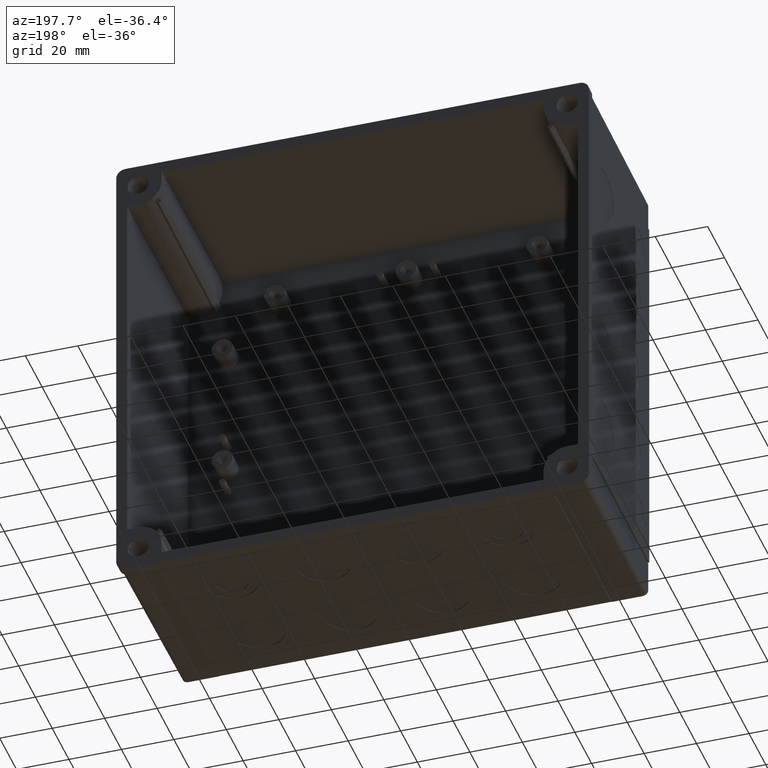
[diagram: clean part render]
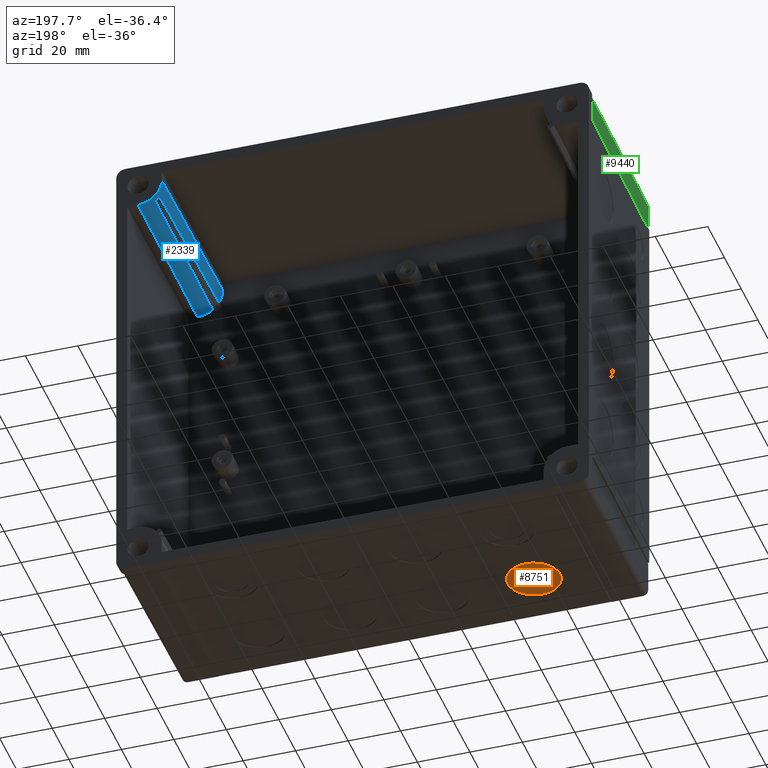
[diagram: same view with three faces highlighted in distinct colors, each labeled with its STEP entity id]
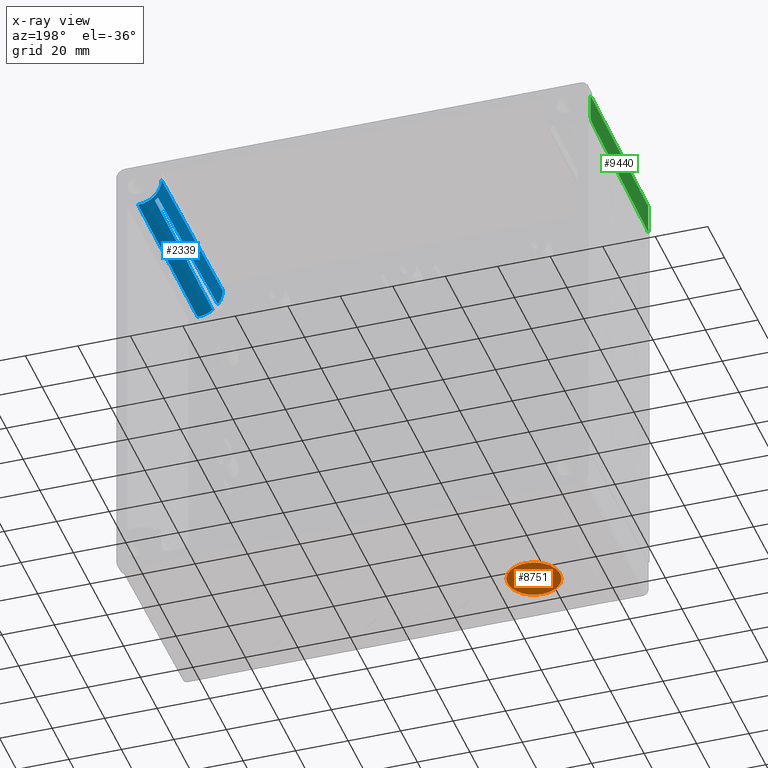
[diagram: x-ray of the same camera — body ghosted, the three highlighted faces saturated]
A machine part, auxiliary view with three faces highlighted in distinct colors.
The next image is the same camera in x-ray (body ghosted, the three faces saturated) — at least one of them is partly hidden behind the body in this view.
Their STEP definitions:

[orange] entity #8751 — the highlighted planar face has unit normal (0, 0.0087, 1).
#717 = CARTESIAN_POINT ( 'NONE',  ( -52.50000000000000000, -51.99627469223723600, -89.39622776947172200 ) ) ;
#1160 = DIRECTION ( 'NONE',  ( 0.0000000000000000000, 0.008726535498373953800, 0.9999619230641713100 ) ) ;
#1282 = CARTESIAN_POINT ( 'NONE',  ( -52.50000000000000000, -41.99665546159551600, -89.48349312445546400 ) ) ;
#2019 = CIRCLE ( 'NONE', #10596, 10.00000000000000200 ) ;
#2670 = CARTESIAN_POINT ( 'NONE',  ( -52.50000000000000000, -51.99627469223723600, -89.39622776947172200 ) ) ;
#3324 = CIRCLE ( 'NONE', #9554, 10.00000000000000200 ) ;
#3585 = EDGE_LOOP ( 'NONE', ( #8639, #9961 ) ) ;
#3618 = DIRECTION ( 'NONE',  ( -0.0000000000000000000, -0.008726535498373953800, -0.9999619230641713100 ) ) ;
#3956 = DIRECTION ( 'NONE',  ( 0.0000000000000000000, -0.9999619230641713100, 0.008726535498373953800 ) ) ;
#4173 = EDGE_CURVE ( 'NONE', #10068, #5084, #2019, .T. ) ;
#5084 = VERTEX_POINT ( 'NONE', #1282 ) ;
#5979 = AXIS2_PLACEMENT_3D ( 'NONE', #9784, #1160, #3956 ) ;
#6507 = DIRECTION ( 'NONE',  ( 0.0000000000000000000, -0.9999619230641713100, 0.008726535498373986700 ) ) ;
#6654 = FACE_OUTER_BOUND ( 'NONE', #3585, .T. ) ;
#6973 = PLANE ( 'NONE',  #5979 ) ;
#7149 = CARTESIAN_POINT ( 'NONE',  ( -52.50000000000000000, -61.99589392287894900, -89.30896241448797900 ) ) ;
#8337 = DIRECTION ( 'NONE',  ( 0.0000000000000000000, -0.9999619230641713100, 0.008726535498373986700 ) ) ;
#8353 = EDGE_CURVE ( 'NONE', #5084, #10068, #3324, .T. ) ;
#8421 = DIRECTION ( 'NONE',  ( -0.0000000000000000000, -0.008726535498373953800, -0.9999619230641713100 ) ) ;
#8639 = ORIENTED_EDGE ( 'NONE', *, *, #8353, .T. ) ;
#8751 = ADVANCED_FACE ( 'NONE', ( #6654 ), #6973, .F. ) ;
#9554 = AXIS2_PLACEMENT_3D ( 'NONE', #2670, #3618, #8337 ) ;
#9784 = CARTESIAN_POINT ( 'NONE',  ( -52.50000000000000000, -51.99627469223723600, -89.39622776947172200 ) ) ;
#9961 = ORIENTED_EDGE ( 'NONE', *, *, #4173, .T. ) ;
#10068 = VERTEX_POINT ( 'NONE', #7149 ) ;
#10596 = AXIS2_PLACEMENT_3D ( 'NONE', #717, #8421, #6507 ) ;

[blue] entity #2339 — the highlighted conical surface has half-angle 0.5 deg.
#6 = VERTEX_POINT ( 'NONE', #7745 ) ;
#31 = ORIENTED_EDGE ( 'NONE', *, *, #5274, .F. ) ;
#114 = VERTEX_POINT ( 'NONE', #2211 ) ;
#416 = CONICAL_SURFACE ( 'NONE', #5337, 9.000000000000007100, 0.008726646259971666800 ) ;
#556 = EDGE_CURVE ( 'NONE', #6254, #1825, #10102, .T. ) ;
#1182 = CARTESIAN_POINT ( 'NONE',  ( 81.75000000000000000, 0.0000000000000000000, 81.75000000000001400 ) ) ;
#1407 = AXIS2_PLACEMENT_3D ( 'NONE', #3170, #7956, #4091 ) ;
#1532 = ORIENTED_EDGE ( 'NONE', *, *, #7150, .F. ) ;
#1689 = CARTESIAN_POINT ( 'NONE',  ( 74.02908415226613700, -71.00000000000000000, 76.01202918244892700 ) ) ;
#1690 = ORIENTED_EDGE ( 'NONE', *, *, #9914, .F. ) ;
#1825 = VERTEX_POINT ( 'NONE', #3905 ) ;
#1988 = CARTESIAN_POINT ( 'NONE',  ( 75.98514694180882100, -36.91827245124490300, 74.42282682756825800 ) ) ;
#2028 = DIRECTION ( 'NONE',  ( 0.008726535498373953800, 0.9999619230641713100, 2.953780681555979500E-017 ) ) ;
#2068 = CARTESIAN_POINT ( 'NONE',  ( 75.96765493337527200, -7.959144256122450600, 74.76273838224351200 ) ) ;
#2127 = LINE ( 'NONE', #12464, #9524 ) ;
#2177 = CIRCLE ( 'NONE', #7519, 9.017453735581535000 ) ;
#2211 = CARTESIAN_POINT ( 'NONE',  ( 74.83315437106621500, -2.000000000000000000, 75.96452522096477400 ) ) ;
#2263 = ORIENTED_EDGE ( 'NONE', *, *, #8609, .F. ) ;
#2339 = ADVANCED_FACE ( 'NONE', ( #4448 ), #416, .T. ) ;
#2656 = CARTESIAN_POINT ( 'NONE',  ( 74.44191484099789600, -35.28577673808040800, 75.98408725670594800 ) ) ;
#2750 = CARTESIAN_POINT ( 'NONE',  ( 74.02908415226613700, -71.00000000000000000, 76.01202918244892700 ) ) ;
#3170 = CARTESIAN_POINT ( 'NONE',  ( 81.75000000000000000, -71.00000000000000000, 81.75000000000001400 ) ) ;
#3603 = VERTEX_POINT ( 'NONE', #5547 ) ;
#3604 = CARTESIAN_POINT ( 'NONE',  ( 74.83315437106621500, -2.000000000000000000, 75.96452522096477400 ) ) ;
#3680 = CARTESIAN_POINT ( 'NONE',  ( 72.13039238685611600, -71.00000000000000000, 81.75000000000000000 ) ) ;
#3773 = CARTESIAN_POINT ( 'NONE',  ( 74.10218513339022200, -64.64289605725134900, 76.00667298126825200 ) ) ;
#3905 = CARTESIAN_POINT ( 'NONE',  ( 81.75000000000001400, 0.0000000000000000000, 72.75000000000001400 ) ) ;
#3988 = CARTESIAN_POINT ( 'NONE',  ( 75.97105188646592900, -13.91829154019010100, 74.69258959673094000 ) ) ;
#3999 = CARTESIAN_POINT ( 'NONE',  ( 81.75000000000000000, -2.000000000000000000, 81.75000000000001400 ) ) ;
#4091 = DIRECTION ( 'NONE',  ( 0.0000000000000000000, 0.0000000000000000000, -1.000000000000000000 ) ) ;
#4222 = AXIS2_PLACEMENT_3D ( 'NONE', #5241, #8234, #11949 ) ;
#4448 = FACE_OUTER_BOUND ( 'NONE', #8723, .T. ) ;
#4714 = CARTESIAN_POINT ( 'NONE',  ( 74.17554175027154900, -58.28579482740408900, 76.00157244932653100 ) ) ;
#4784 = VERTEX_POINT ( 'NONE', #2750 ) ;
#4814 = ORIENTED_EDGE ( 'NONE', *, *, #6701, .T. ) ;
#4853 = CARTESIAN_POINT ( 'NONE',  ( 81.75000000000001400, 6.055019831808904700E-017, 72.75000000000001400 ) ) ;
#5007 = VERTEX_POINT ( 'NONE', #11954 ) ;
#5241 = CARTESIAN_POINT ( 'NONE',  ( 81.75000000000000000, -71.00000000000000000, 81.75000000000001400 ) ) ;
#5274 = EDGE_CURVE ( 'NONE', #4784, #114, #6826, .T. ) ;
#5337 = AXIS2_PLACEMENT_3D ( 'NONE', #1182, #7073, #6003 ) ;
#5547 = CARTESIAN_POINT ( 'NONE',  ( 75.96452522096468800, -1.999999999999997300, 74.83315437106630000 ) ) ;
#5694 = DIRECTION ( 'NONE',  ( -1.345611199375488900E-017, 0.9999619230641713100, 0.008726535498373953800 ) ) ;
#5754 = EDGE_CURVE ( 'NONE', #7878, #5007, #2127, .T. ) ;
#6003 = DIRECTION ( 'NONE',  ( 0.0000000000000000000, 0.0000000000000000000, -1.000000000000000000 ) ) ;
#6193 = ORIENTED_EDGE ( 'NONE', *, *, #556, .F. ) ;
#6254 = VERTEX_POINT ( 'NONE', #7218 ) ;
#6452 = CIRCLE ( 'NONE', #1407, 9.619607613143898600 ) ;
#6647 = CARTESIAN_POINT ( 'NONE',  ( 74.63649448887862500, -18.64287652477926800, 75.97326597550414800 ) ) ;
#6701 = EDGE_CURVE ( 'NONE', #5007, #1825, #9732, .T. ) ;
#6826 = B_SPLINE_CURVE_WITH_KNOTS ( 'NONE', 3,
 ( #1689, #3773, #4714, #8530, #2656, #6647, #3604 ),
 .UNSPECIFIED., .F., .F.,
 ( 4, 3, 4 ),
 ( 2.000132931470033500E-007, 0.01907277946210354400, 0.06900490211012022500 ),
 .UNSPECIFIED. ) ;
#6836 = CARTESIAN_POINT ( 'NONE',  ( 75.97470382647696900, -19.87744164630781500, 74.62269576330999100 ) ) ;
#6877 = CARTESIAN_POINT ( 'NONE',  ( 76.01202918244882800, -71.00000000000000000, 74.02908415226620800 ) ) ;
#7068 = DIRECTION ( 'NONE',  ( 0.0000000000000000000, 0.0000000000000000000, -1.000000000000000000 ) ) ;
#7073 = DIRECTION ( 'NONE',  ( 0.0000000000000000000, -1.000000000000000000, 0.0000000000000000000 ) ) ;
#7150 = EDGE_CURVE ( 'NONE', #114, #3603, #2177, .T. ) ;
#7218 = CARTESIAN_POINT ( 'NONE',  ( 81.75000000000001400, -71.00000000000000000, 72.13039238685613000 ) ) ;
#7519 = AXIS2_PLACEMENT_3D ( 'NONE', #3999, #8792, #7824 ) ;
#7745 = CARTESIAN_POINT ( 'NONE',  ( 76.01202918244882800, -71.00000000000000000, 74.02908415226620800 ) ) ;
#7773 = CARTESIAN_POINT ( 'NONE',  ( 75.96452522096468800, -1.999999999999997300, 74.83315437106630000 ) ) ;
#7824 = DIRECTION ( 'NONE',  ( 6.155967400444657400E-015, 0.0000000000000000000, 1.000000000000000000 ) ) ;
#7878 = VERTEX_POINT ( 'NONE', #3680 ) ;
#7956 = DIRECTION ( 'NONE',  ( -0.0000000000000000000, -1.000000000000000000, 0.0000000000000000000 ) ) ;
#8180 = CARTESIAN_POINT ( 'NONE',  ( 81.75000000000000000, 0.0000000000000000000, 81.75000000000001400 ) ) ;
#8234 = DIRECTION ( 'NONE',  ( -0.0000000000000000000, -1.000000000000000000, 0.0000000000000000000 ) ) ;
#8530 = CARTESIAN_POINT ( 'NONE',  ( 74.24916603707846700, -51.92869650431466500, 75.99673962318459500 ) ) ;
#8609 = EDGE_CURVE ( 'NONE', #3603, #6, #9617, .T. ) ;
#8723 = EDGE_LOOP ( 'NONE', ( #1532, #31, #1690, #10974, #4814, #6193, #11842, #2263 ) ) ;
#8792 = DIRECTION ( 'NONE',  ( -0.0000000000000000000, -1.000000000000000000, -0.0000000000000000000 ) ) ;
#9202 = VECTOR ( 'NONE', #5694, 1000.000000000000000 ) ;
#9524 = VECTOR ( 'NONE', #2028, 1000.000000000000000 ) ;
#9617 = B_SPLINE_CURVE_WITH_KNOTS ( 'NONE', 3,
 ( #7773, #2068, #3988, #6836, #1988, #10784, #6877 ),
 .UNSPECIFIED., .F., .F.,
 ( 4, 3, 4 ),
 ( 2.000139895744804500E-007, 0.01787888330574040000, 0.06900490214717065800 ),
 .UNSPECIFIED. ) ;
#9732 = CIRCLE ( 'NONE', #12330, 9.000000000000007100 ) ;
#9914 = EDGE_CURVE ( 'NONE', #7878, #4784, #6452, .T. ) ;
#10042 = CIRCLE ( 'NONE', #4222, 9.619607613143898600 ) ;
#10102 = LINE ( 'NONE', #4853, #9202 ) ;
#10784 = CARTESIAN_POINT ( 'NONE',  ( 75.99767133221845900, -53.95912658430225400, 74.22503887899671300 ) ) ;
#10969 = DIRECTION ( 'NONE',  ( 0.0000000000000000000, -1.000000000000000000, -0.0000000000000000000 ) ) ;
#10974 = ORIENTED_EDGE ( 'NONE', *, *, #5754, .T. ) ;
#11349 = EDGE_CURVE ( 'NONE', #6, #6254, #10042, .T. ) ;
#11842 = ORIENTED_EDGE ( 'NONE', *, *, #11349, .F. ) ;
#11949 = DIRECTION ( 'NONE',  ( 0.0000000000000000000, 0.0000000000000000000, -1.000000000000000000 ) ) ;
#11954 = CARTESIAN_POINT ( 'NONE',  ( 72.75000000000000000, 0.0000000000000000000, 81.75000000000001400 ) ) ;
#12330 = AXIS2_PLACEMENT_3D ( 'NONE', #8180, #10969, #7068 ) ;
#12464 = CARTESIAN_POINT ( 'NONE',  ( 72.75000000000000000, 0.0000000000000000000, 81.75000000000001400 ) ) ;

[green] entity #9440 — the highlighted planar face has unit normal (1, 0.0087, 0).
#712 = VECTOR ( 'NONE', #8352, 1000.000000000000000 ) ;
#1094 = VERTEX_POINT ( 'NONE', #2736 ) ;
#1122 = CARTESIAN_POINT ( 'NONE',  ( -89.34999999999998000, -4.000000000000000000, 86.54999999999998300 ) ) ;
#1243 = VECTOR ( 'NONE', #7864, 1000.000000000000000 ) ;
#1511 = ORIENTED_EDGE ( 'NONE', *, *, #5667, .F. ) ;
#1665 = VERTEX_POINT ( 'NONE', #11387 ) ;
#1672 = EDGE_CURVE ( 'NONE', #6999, #1665, #2672, .T. ) ;
#1818 = DIRECTION ( 'NONE',  ( -0.008726203243944194800, 0.9999238504775704900, -0.008726203243944236400 ) ) ;
#1894 = ORIENTED_EDGE ( 'NONE', *, *, #11041, .T. ) ;
#1955 =( BOUNDED_CURVE ( )  B_SPLINE_CURVE ( 3, ( #7450, #3670, #9505, #12342 ),
 .UNSPECIFIED., .F., .F. ) 
 B_SPLINE_CURVE_WITH_KNOTS ( ( 4, 4 ),
 ( 2.891119749198240600E-013, 1.562069680535214300 ),
 .UNSPECIFIED. ) 
 CURVE ( )  GEOMETRIC_REPRESENTATION_ITEM ( )  RATIONAL_B_SPLINE_CURVE ( ( 1.000000000000000000, 0.8067902504155235500, 0.8067902504155235500, 1.000000000000000000 ) ) 
 REPRESENTATION_ITEM ( '' )  );
#2357 = PLANE ( 'NONE',  #10451 ) ;
#2532 = VECTOR ( 'NONE', #1818, 1000.000000000000100 ) ;
#2663 = VERTEX_POINT ( 'NONE', #10483 ) ;
#2672 = LINE ( 'NONE', #6665, #2532 ) ;
#2736 = CARTESIAN_POINT ( 'NONE',  ( -88.73911925464683700, -74.00000000000000000, 74.93911925464689700 ) ) ;
#2802 = LINE ( 'NONE', #5128, #10931 ) ;
#3670 = CARTESIAN_POINT ( 'NONE',  ( -89.34999999999992300, -4.000000000000000000, 76.36913996860559500 ) ) ;
#3778 = LINE ( 'NONE', #1122, #1243 ) ;
#3913 = VERTEX_POINT ( 'NONE', #11850 ) ;
#4270 = CARTESIAN_POINT ( 'NONE',  ( -88.73039238685613800, -75.00000000000000000, 86.55000000000002600 ) ) ;
#4370 = CARTESIAN_POINT ( 'NONE',  ( -89.33269857506154200, -5.982546929003253100, 75.53269857506163000 ) ) ;
#4441 = DIRECTION ( 'NONE',  ( 4.700000992991000500E-015, -0.0000000000000000000, -1.000000000000000000 ) ) ;
#4550 = EDGE_LOOP ( 'NONE', ( #11329, #1894, #6934, #4974, #11290, #1511, #7120 ) ) ;
#4564 = CARTESIAN_POINT ( 'NONE',  ( -88.73911925464683700, -74.00000000000000000, 74.73911925464686600 ) ) ;
#4974 = ORIENTED_EDGE ( 'NONE', *, *, #6894, .T. ) ;
#5128 = CARTESIAN_POINT ( 'NONE',  ( -89.35083761285353900, -3.904019073774919900, 75.55083761285362700 ) ) ;
#5667 = EDGE_CURVE ( 'NONE', #2663, #6999, #9079, .T. ) ;
#6028 = EDGE_CURVE ( 'NONE', #1094, #6250, #2802, .T. ) ;
#6250 = VERTEX_POINT ( 'NONE', #4370 ) ;
#6258 = CARTESIAN_POINT ( 'NONE',  ( -89.34999999999992300, -4.000000000000000000, 86.54999999999998300 ) ) ;
#6631 = CARTESIAN_POINT ( 'NONE',  ( -88.73039238685608200, -75.00000000000000000, 74.74784612243762200 ) ) ;
#6665 = CARTESIAN_POINT ( 'NONE',  ( -88.73911925464683700, -74.00000000000000000, 74.73911925464686600 ) ) ;
#6894 = EDGE_CURVE ( 'NONE', #1094, #1665, #11222, .T. ) ;
#6934 = ORIENTED_EDGE ( 'NONE', *, *, #6028, .F. ) ;
#6999 = VERTEX_POINT ( 'NONE', #6631 ) ;
#7120 = ORIENTED_EDGE ( 'NONE', *, *, #11263, .T. ) ;
#7121 = DIRECTION ( 'NONE',  ( 0.9999619230641713100, 0.008726535498373953800, 5.046276139701343900E-015 ) ) ;
#7450 = CARTESIAN_POINT ( 'NONE',  ( -89.34999999999993700, -4.000000000000000000, 77.53262242118998400 ) ) ;
#7565 = VECTOR ( 'NONE', #11065, 1000.000000000000000 ) ;
#7695 = FACE_OUTER_BOUND ( 'NONE', #4550, .T. ) ;
#7864 = DIRECTION ( 'NONE',  ( 5.046468293750726400E-015, 0.0000000000000000000, -1.000000000000000000 ) ) ;
#8097 = LINE ( 'NONE', #6258, #712 ) ;
#8352 = DIRECTION ( 'NONE',  ( -0.008726535498373953800, 0.9999619230641713100, -1.730071542054220900E-016 ) ) ;
#8381 = VECTOR ( 'NONE', #4441, 1000.000000000000000 ) ;
#8398 = VERTEX_POINT ( 'NONE', #12302 ) ;
#8801 = EDGE_CURVE ( 'NONE', #8398, #3913, #3778, .T. ) ;
#9021 = DIRECTION ( 'NONE',  ( -0.008726535498373953800, 0.9999619230641713100, 0.0000000000000000000 ) ) ;
#9079 = LINE ( 'NONE', #4270, #7565 ) ;
#9440 = ADVANCED_FACE ( 'NONE', ( #7695 ), #2357, .F. ) ;
#9505 = CARTESIAN_POINT ( 'NONE',  ( -89.34285174598575500, -4.819108778265551500, 75.54285174598585700 ) ) ;
#10451 = AXIS2_PLACEMENT_3D ( 'NONE', #11024, #7121, #9021 ) ;
#10483 = CARTESIAN_POINT ( 'NONE',  ( -88.73039238685613800, -75.00000000000000000, 86.54999999999995500 ) ) ;
#10931 = VECTOR ( 'NONE', #11908, 1000.000000000000100 ) ;
#11024 = CARTESIAN_POINT ( 'NONE',  ( -89.34999999999998000, -4.000000000000000000, 86.54999999999998300 ) ) ;
#11041 = EDGE_CURVE ( 'NONE', #3913, #6250, #1955, .T. ) ;
#11065 = DIRECTION ( 'NONE',  ( 4.700000992991000500E-015, -0.0000000000000000000, -1.000000000000000000 ) ) ;
#11222 = LINE ( 'NONE', #4564, #8381 ) ;
#11263 = EDGE_CURVE ( 'NONE', #2663, #8398, #8097, .T. ) ;
#11290 = ORIENTED_EDGE ( 'NONE', *, *, #1672, .F. ) ;
#11329 = ORIENTED_EDGE ( 'NONE', *, *, #8801, .T. ) ;
#11387 = CARTESIAN_POINT ( 'NONE',  ( -88.73911925464683700, -74.00000000000000000, 74.73911925464685200 ) ) ;
#11850 = CARTESIAN_POINT ( 'NONE',  ( -89.34999999999993700, -4.000000000000000000, 77.53262242118998400 ) ) ;
#11908 = DIRECTION ( 'NONE',  ( -0.008726203243944278100, 0.9999238504775704900, 0.008726203243944215600 ) ) ;
#12302 = CARTESIAN_POINT ( 'NONE',  ( -89.34999999999998000, -4.000000000000000000, 86.54999999999998300 ) ) ;
#12342 = CARTESIAN_POINT ( 'NONE',  ( -89.33269857506154200, -5.982546929003253100, 75.53269857506163000 ) ) ;